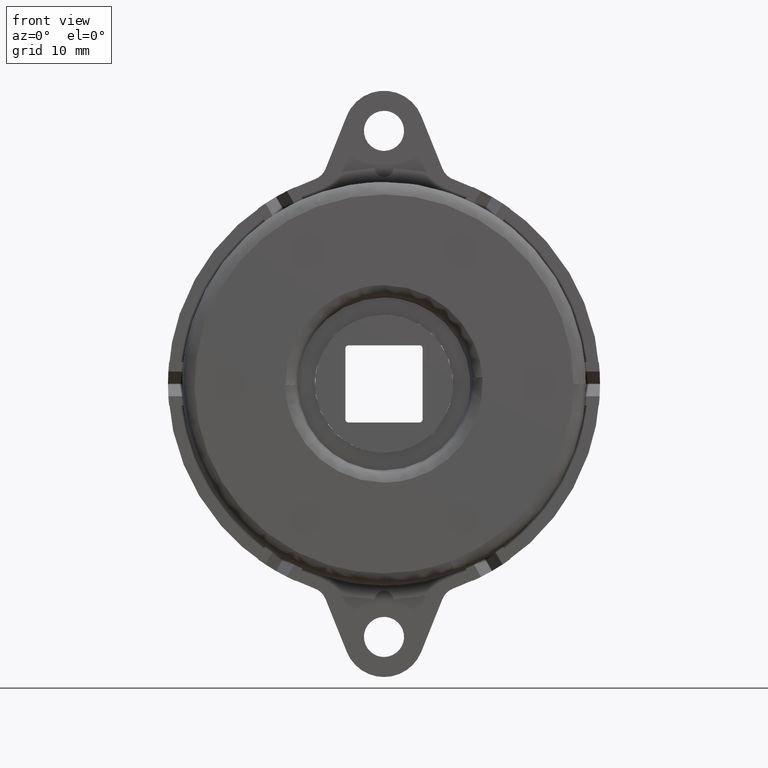
[diagram: clean part render]
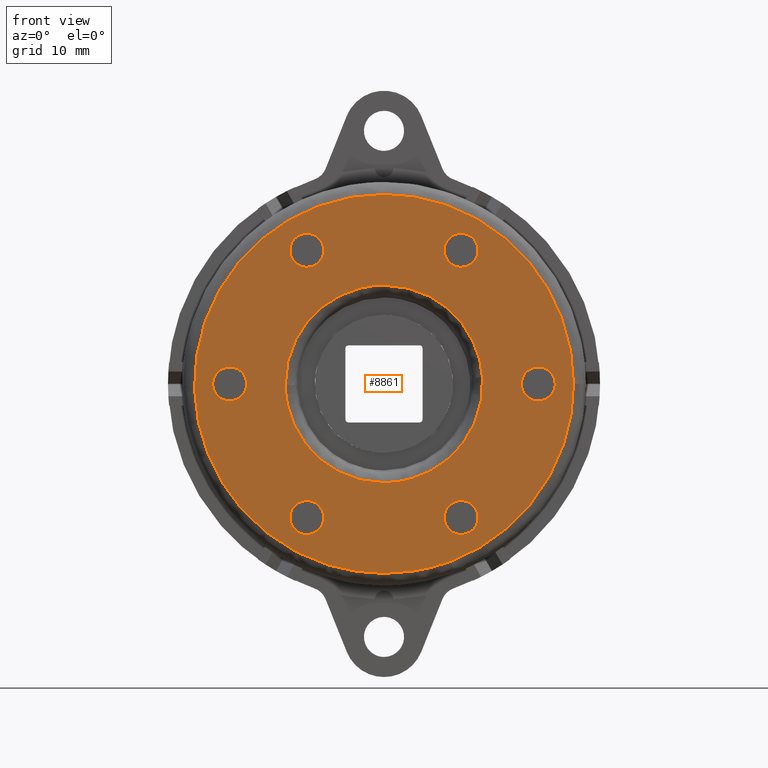
[diagram: same view with one face highlighted and labeled with its STEP entity id]
A machine part, front view. The second image highlights one B-rep face of the part: STEP entity #8861.
In plain terms, the highlighted face is a freeform B-spline surface patch.
Its self-contained STEP definition (entity closure, byte-faithful):
#866=CARTESIAN_POINT('',(-15.230746197486200,-11.300000000000001,21.975224145422871));
#867=VERTEX_POINT('',#866);
#873=CARTESIAN_POINT('',(-12.499969999999999,-11.300000000000001,18.900630000000000));
#874=VERTEX_POINT('',#873);
#875=CARTESIAN_POINT('',(-15.230746197486203,-11.299999999999995,21.975224145422874));
#876=CARTESIAN_POINT('',(-15.249970000000001,-11.300000000000001,21.813496329160774));
#877=CARTESIAN_POINT('',(-15.249969999999999,-11.300000000000001,21.650630000000000));
#878=CARTESIAN_POINT('',(-15.249969999999994,-11.299999999999999,18.900630000000003));
#879=CARTESIAN_POINT('',(-12.499969999999999,-11.300000000000001,18.900630000000000));
#887=(BOUNDED_CURVE()B_SPLINE_CURVE(2,(#875,#876,#877,#878,#879),.UNSPECIFIED.,.F.,.U.)B_SPLINE_CURVE_WITH_KNOTS((3,2,3),(0.229562473501188,0.250000000000000,0.500000000000000),.UNSPECIFIED.)CURVE()GEOMETRIC_REPRESENTATION_ITEM()RATIONAL_B_SPLINE_CURVE((0.956026754159552,0.976055948316711,1.0,0.707106781186548,1.0))REPRESENTATION_ITEM(''));
#888=EDGE_CURVE('',#867,#874,#887,.T.);
#890=CARTESIAN_POINT('',(-9.755099304361327,-11.300000000000001,21.482746515928248));
#891=VERTEX_POINT('',#890);
#892=CARTESIAN_POINT('',(-12.499969999999999,-11.300000000000001,18.900630000000000));
#893=CARTESIAN_POINT('',(-9.913028316671973,-11.300000000000001,18.900630000000003));
#894=CARTESIAN_POINT('',(-9.755099304361327,-11.300000000000006,21.482746515928252));
#902=(BOUNDED_CURVE()B_SPLINE_CURVE(2,(#892,#893,#894),.UNSPECIFIED.,.F.,.U.)B_SPLINE_CURVE_WITH_KNOTS((3,3),(0.500000000000000,0.739332962197853),.UNSPECIFIED.)CURVE()GEOMETRIC_REPRESENTATION_ITEM()RATIONAL_B_SPLINE_CURVE((1.0,0.719603993334849,0.976072041578655))REPRESENTATION_ITEM(''));
#903=EDGE_CURVE('',#874,#891,#902,.T.);
#977=CARTESIAN_POINT('',(-12.499969999999999,-11.300000000000001,24.400630000000000));
#978=VERTEX_POINT('',#977);
#979=CARTESIAN_POINT('',(-9.755099304361327,-11.299999999999997,21.482746515928252));
#980=CARTESIAN_POINT('',(-9.749970000000001,-11.299999999999997,21.566609900577003));
#981=CARTESIAN_POINT('',(-9.749969999999999,-11.300000000000001,21.650630000000000));
#982=CARTESIAN_POINT('',(-9.749969999999999,-11.299999999999999,24.400630000000000));
#983=CARTESIAN_POINT('',(-12.499969999999999,-11.300000000000001,24.400630000000000));
#991=(BOUNDED_CURVE()B_SPLINE_CURVE(2,(#979,#980,#981,#982,#983),.UNSPECIFIED.,.F.,.U.)B_SPLINE_CURVE_WITH_KNOTS((3,2,3),(0.739332962197853,0.750000000000000,1.0),.UNSPECIFIED.)CURVE()GEOMETRIC_REPRESENTATION_ITEM()RATIONAL_B_SPLINE_CURVE((0.976072041578654,0.987502787851698,1.0,0.707106781186548,1.0))REPRESENTATION_ITEM(''));
#992=EDGE_CURVE('',#891,#978,#991,.T.);
#994=CARTESIAN_POINT('',(-12.499969999999999,-11.300000000000001,24.400630000000000));
#995=CARTESIAN_POINT('',(-14.942449946155863,-11.300000000000001,24.400630000000003));
#996=CARTESIAN_POINT('',(-15.230746197486200,-11.300000000000004,21.975224145422878));
#1004=(BOUNDED_CURVE()B_SPLINE_CURVE(2,(#994,#995,#996),.UNSPECIFIED.,.F.,.U.)B_SPLINE_CURVE_WITH_KNOTS((3,3),(0.0,0.229562473501189),.UNSPECIFIED.)CURVE()GEOMETRIC_REPRESENTATION_ITEM()RATIONAL_B_SPLINE_CURVE((1.0,0.731050832869836,0.956026754159552))REPRESENTATION_ITEM(''));
#1005=EDGE_CURVE('',#978,#867,#1004,.T.);
#1052=CARTESIAN_POINT('',(9.769223802513800,-11.300000000000001,21.975224145422871));
#1053=VERTEX_POINT('',#1052);
#1059=CARTESIAN_POINT('',(12.500000000000000,-11.300000000000001,18.900630000000000));
#1060=VERTEX_POINT('',#1059);
#1061=CARTESIAN_POINT('',(9.769223802513800,-11.299999999999995,21.975224145422874));
#1062=CARTESIAN_POINT('',(9.750000000000002,-11.300000000000001,21.813496329160774));
#1063=CARTESIAN_POINT('',(9.750000000000002,-11.300000000000001,21.650630000000000));
#1064=CARTESIAN_POINT('',(9.750000000000002,-11.299999999999999,18.900630000000003));
#1065=CARTESIAN_POINT('',(12.500000000000000,-11.300000000000001,18.900630000000000));
#1073=(BOUNDED_CURVE()B_SPLINE_CURVE(2,(#1061,#1062,#1063,#1064,#1065),.UNSPECIFIED.,.F.,.U.)B_SPLINE_CURVE_WITH_KNOTS((3,2,3),(0.229562473501188,0.250000000000000,0.500000000000000),.UNSPECIFIED.)CURVE()GEOMETRIC_REPRESENTATION_ITEM()RATIONAL_B_SPLINE_CURVE((0.956026754159552,0.976055948316711,1.0,0.707106781186548,1.0))REPRESENTATION_ITEM(''));
#1074=EDGE_CURVE('',#1053,#1060,#1073,.T.);
#1076=CARTESIAN_POINT('',(15.244870695638671,-11.300000000000001,21.482746515928248));
#1077=VERTEX_POINT('',#1076);
#1078=CARTESIAN_POINT('',(12.500000000000000,-11.300000000000001,18.900630000000000));
#1079=CARTESIAN_POINT('',(15.086941683328019,-11.300000000000001,18.900630000000003));
#1080=CARTESIAN_POINT('',(15.244870695638671,-11.300000000000006,21.482746515928252));
#1088=(BOUNDED_CURVE()B_SPLINE_CURVE(2,(#1078,#1079,#1080),.UNSPECIFIED.,.F.,.U.)B_SPLINE_CURVE_WITH_KNOTS((3,3),(0.500000000000000,0.739332962197853),.UNSPECIFIED.)CURVE()GEOMETRIC_REPRESENTATION_ITEM()RATIONAL_B_SPLINE_CURVE((1.0,0.719603993334849,0.976072041578655))REPRESENTATION_ITEM(''));
#1089=EDGE_CURVE('',#1060,#1077,#1088,.T.);
#1163=CARTESIAN_POINT('',(12.500000000000000,-11.300000000000001,24.400630000000000));
#1164=VERTEX_POINT('',#1163);
#1165=CARTESIAN_POINT('',(15.244870695638676,-11.299999999999997,21.482746515928252));
#1166=CARTESIAN_POINT('',(15.250000000000004,-11.299999999999997,21.566609900577003));
#1167=CARTESIAN_POINT('',(15.250000000000000,-11.300000000000001,21.650630000000000));
#1168=CARTESIAN_POINT('',(15.249999999999998,-11.299999999999999,24.400630000000000));
#1169=CARTESIAN_POINT('',(12.500000000000000,-11.300000000000001,24.400630000000000));
#1177=(BOUNDED_CURVE()B_SPLINE_CURVE(2,(#1165,#1166,#1167,#1168,#1169),.UNSPECIFIED.,.F.,.U.)B_SPLINE_CURVE_WITH_KNOTS((3,2,3),(0.739332962197853,0.750000000000000,1.0),.UNSPECIFIED.)CURVE()GEOMETRIC_REPRESENTATION_ITEM()RATIONAL_B_SPLINE_CURVE((0.976072041578654,0.987502787851698,1.0,0.707106781186548,1.0))REPRESENTATION_ITEM(''));
#1178=EDGE_CURVE('',#1077,#1164,#1177,.T.);
#1180=CARTESIAN_POINT('',(12.500000000000000,-11.300000000000001,24.400630000000000));
#1181=CARTESIAN_POINT('',(10.057520053844129,-11.300000000000001,24.400630000000003));
#1182=CARTESIAN_POINT('',(9.769223802513800,-11.300000000000004,21.975224145422878));
#1190=(BOUNDED_CURVE()B_SPLINE_CURVE(2,(#1180,#1181,#1182),.UNSPECIFIED.,.F.,.U.)B_SPLINE_CURVE_WITH_KNOTS((3,3),(0.0,0.229562473501189),.UNSPECIFIED.)CURVE()GEOMETRIC_REPRESENTATION_ITEM()RATIONAL_B_SPLINE_CURVE((1.0,0.731050832869836,0.956026754159552))REPRESENTATION_ITEM(''));
#1191=EDGE_CURVE('',#1164,#1053,#1190,.T.);
#1238=CARTESIAN_POINT('',(22.269223802513800,-11.300000000000001,0.324594145422875));
#1239=VERTEX_POINT('',#1238);
#1245=CARTESIAN_POINT('',(25.0,-11.300000000000001,-2.750000000000000));
#1246=VERTEX_POINT('',#1245);
#1247=CARTESIAN_POINT('',(22.269223802513800,-11.300000000000006,0.324594145422875));
#1248=CARTESIAN_POINT('',(22.250000000000000,-11.300000000000001,0.162866329160777));
#1249=CARTESIAN_POINT('',(22.250000000000000,-11.300000000000001,0.0));
#1250=CARTESIAN_POINT('',(22.250000000000011,-11.299999999999999,-2.750000000000000));
#1251=CARTESIAN_POINT('',(25.0,-11.300000000000001,-2.750000000000000));
#1259=(BOUNDED_CURVE()B_SPLINE_CURVE(2,(#1247,#1248,#1249,#1250,#1251),.UNSPECIFIED.,.F.,.U.)B_SPLINE_CURVE_WITH_KNOTS((3,2,3),(0.229562473501188,0.250000000000000,0.500000000000000),.UNSPECIFIED.)CURVE()GEOMETRIC_REPRESENTATION_ITEM()RATIONAL_B_SPLINE_CURVE((0.956026754159552,0.976055948316711,1.0,0.707106781186548,1.0))REPRESENTATION_ITEM(''));
#1260=EDGE_CURVE('',#1239,#1246,#1259,.T.);
#1262=CARTESIAN_POINT('',(27.744870695638671,-11.300000000000001,-0.167883484071749));
#1263=VERTEX_POINT('',#1262);
#1264=CARTESIAN_POINT('',(25.0,-11.300000000000001,-2.750000000000000));
#1265=CARTESIAN_POINT('',(27.586941683328021,-11.300000000000001,-2.750000000000000));
#1266=CARTESIAN_POINT('',(27.744870695638678,-11.300000000000006,-0.167883484071749));
#1274=(BOUNDED_CURVE()B_SPLINE_CURVE(2,(#1264,#1265,#1266),.UNSPECIFIED.,.F.,.U.)B_SPLINE_CURVE_WITH_KNOTS((3,3),(0.500000000000000,0.739332962197853),.UNSPECIFIED.)CURVE()GEOMETRIC_REPRESENTATION_ITEM()RATIONAL_B_SPLINE_CURVE((1.0,0.719603993334849,0.976072041578655))REPRESENTATION_ITEM(''));
#1275=EDGE_CURVE('',#1246,#1263,#1274,.T.);
#1349=CARTESIAN_POINT('',(25.0,-11.300000000000001,2.750000000000000));
#1350=VERTEX_POINT('',#1349);
#1351=CARTESIAN_POINT('',(27.744870695638674,-11.300000000000006,-0.167883484071749));
#1352=CARTESIAN_POINT('',(27.750000000000000,-11.299999999999997,-0.084020099422996));
#1353=CARTESIAN_POINT('',(27.750000000000000,-11.300000000000001,0.0));
#1354=CARTESIAN_POINT('',(27.749999999999989,-11.299999999999999,2.750000000000000));
#1355=CARTESIAN_POINT('',(25.0,-11.300000000000001,2.750000000000000));
#1363=(BOUNDED_CURVE()B_SPLINE_CURVE(2,(#1351,#1352,#1353,#1354,#1355),.UNSPECIFIED.,.F.,.U.)B_SPLINE_CURVE_WITH_KNOTS((3,2,3),(0.739332962197853,0.750000000000000,1.0),.UNSPECIFIED.)CURVE()GEOMETRIC_REPRESENTATION_ITEM()RATIONAL_B_SPLINE_CURVE((0.976072041578654,0.987502787851698,1.0,0.707106781186548,1.0))REPRESENTATION_ITEM(''));
#1364=EDGE_CURVE('',#1263,#1350,#1363,.T.);
#1366=CARTESIAN_POINT('',(25.0,-11.300000000000001,2.750000000000000));
#1367=CARTESIAN_POINT('',(22.557520053844126,-11.300000000000001,2.750000000000000));
#1368=CARTESIAN_POINT('',(22.269223802513807,-11.300000000000004,0.324594145422875));
#1376=(BOUNDED_CURVE()B_SPLINE_CURVE(2,(#1366,#1367,#1368),.UNSPECIFIED.,.F.,.U.)B_SPLINE_CURVE_WITH_KNOTS((3,3),(0.0,0.229562473501189),.UNSPECIFIED.)CURVE()GEOMETRIC_REPRESENTATION_ITEM()RATIONAL_B_SPLINE_CURVE((1.0,0.731050832869836,0.956026754159552))REPRESENTATION_ITEM(''));
#1377=EDGE_CURVE('',#1350,#1239,#1376,.T.);
#1424=CARTESIAN_POINT('',(9.769223802513801,-11.300000000000001,-21.326035854577121));
#1425=VERTEX_POINT('',#1424);
#1431=CARTESIAN_POINT('',(12.500000000000000,-11.300000000000001,-24.400630000000000));
#1432=VERTEX_POINT('',#1431);
#1433=CARTESIAN_POINT('',(9.769223802513801,-11.300000000000001,-21.326035854577125));
#1434=CARTESIAN_POINT('',(9.750000000000004,-11.300000000000006,-21.487763670839222));
#1435=CARTESIAN_POINT('',(9.750000000000002,-11.300000000000001,-21.650630000000000));
#1436=CARTESIAN_POINT('',(9.750000000000002,-11.299999999999999,-24.400630000000000));
#1437=CARTESIAN_POINT('',(12.500000000000000,-11.300000000000001,-24.400630000000000));
#1445=(BOUNDED_CURVE()B_SPLINE_CURVE(2,(#1433,#1434,#1435,#1436,#1437),.UNSPECIFIED.,.F.,.U.)B_SPLINE_CURVE_WITH_KNOTS((3,2,3),(0.229562473501188,0.250000000000000,0.500000000000000),.UNSPECIFIED.)CURVE()GEOMETRIC_REPRESENTATION_ITEM()RATIONAL_B_SPLINE_CURVE((0.956026754159551,0.976055948316711,1.0,0.707106781186548,1.0))REPRESENTATION_ITEM(''));
#1446=EDGE_CURVE('',#1425,#1432,#1445,.T.);
#1448=CARTESIAN_POINT('',(15.244870695638671,-11.300000000000001,-21.818513484071751));
#1449=VERTEX_POINT('',#1448);
#1450=CARTESIAN_POINT('',(12.500000000000000,-11.300000000000001,-24.400630000000000));
#1451=CARTESIAN_POINT('',(15.086941683328019,-11.300000000000001,-24.400630000000003));
#1452=CARTESIAN_POINT('',(15.244870695638671,-11.299999999999995,-21.818513484071751));
#1460=(BOUNDED_CURVE()B_SPLINE_CURVE(2,(#1450,#1451,#1452),.UNSPECIFIED.,.F.,.U.)B_SPLINE_CURVE_WITH_KNOTS((3,3),(0.500000000000000,0.739332962197853),.UNSPECIFIED.)CURVE()GEOMETRIC_REPRESENTATION_ITEM()RATIONAL_B_SPLINE_CURVE((1.0,0.719603993334849,0.976072041578655))REPRESENTATION_ITEM(''));
#1461=EDGE_CURVE('',#1432,#1449,#1460,.T.);
#1535=CARTESIAN_POINT('',(12.500000000000000,-11.300000000000001,-18.900630000000000));
#1536=VERTEX_POINT('',#1535);
#1537=CARTESIAN_POINT('',(15.244870695638669,-11.300000000000001,-21.818513484071747));
#1538=CARTESIAN_POINT('',(15.249999999999996,-11.300000000000001,-21.734650099422996));
#1539=CARTESIAN_POINT('',(15.250000000000000,-11.300000000000001,-21.650630000000000));
#1540=CARTESIAN_POINT('',(15.249999999999998,-11.299999999999999,-18.900630000000003));
#1541=CARTESIAN_POINT('',(12.500000000000000,-11.300000000000001,-18.900630000000000));
#1549=(BOUNDED_CURVE()B_SPLINE_CURVE(2,(#1537,#1538,#1539,#1540,#1541),.UNSPECIFIED.,.F.,.U.)B_SPLINE_CURVE_WITH_KNOTS((3,2,3),(0.739332962197853,0.750000000000000,1.0),.UNSPECIFIED.)CURVE()GEOMETRIC_REPRESENTATION_ITEM()RATIONAL_B_SPLINE_CURVE((0.976072041578654,0.987502787851697,1.0,0.707106781186548,1.0))REPRESENTATION_ITEM(''));
#1550=EDGE_CURVE('',#1449,#1536,#1549,.T.);
#1552=CARTESIAN_POINT('',(12.500000000000000,-11.300000000000001,-18.900630000000000));
#1553=CARTESIAN_POINT('',(10.057520053844135,-11.300000000000001,-18.900630000000003));
#1554=CARTESIAN_POINT('',(9.769223802513801,-11.300000000000002,-21.326035854577125));
#1562=(BOUNDED_CURVE()B_SPLINE_CURVE(2,(#1552,#1553,#1554),.UNSPECIFIED.,.F.,.U.)B_SPLINE_CURVE_WITH_KNOTS((3,3),(0.0,0.229562473501188),.UNSPECIFIED.)CURVE()GEOMETRIC_REPRESENTATION_ITEM()RATIONAL_B_SPLINE_CURVE((1.0,0.731050832869837,0.956026754159551))REPRESENTATION_ITEM(''));
#1563=EDGE_CURVE('',#1536,#1425,#1562,.T.);
#1610=CARTESIAN_POINT('',(-15.230776197486200,-11.300000000000001,-21.326035854577121));
#1611=VERTEX_POINT('',#1610);
#1617=CARTESIAN_POINT('',(-12.500000000000000,-11.300000000000001,-24.400630000000000));
#1618=VERTEX_POINT('',#1617);
#1619=CARTESIAN_POINT('',(-15.230776197486193,-11.300000000000001,-21.326035854577125));
#1620=CARTESIAN_POINT('',(-15.249999999999996,-11.300000000000006,-21.487763670839222));
#1621=CARTESIAN_POINT('',(-15.250000000000000,-11.300000000000001,-21.650630000000000));
#1622=CARTESIAN_POINT('',(-15.249999999999998,-11.299999999999999,-24.400630000000000));
#1623=CARTESIAN_POINT('',(-12.500000000000000,-11.300000000000001,-24.400630000000000));
#1631=(BOUNDED_CURVE()B_SPLINE_CURVE(2,(#1619,#1620,#1621,#1622,#1623),.UNSPECIFIED.,.F.,.U.)B_SPLINE_CURVE_WITH_KNOTS((3,2,3),(0.229562473501188,0.250000000000000,0.500000000000000),.UNSPECIFIED.)CURVE()GEOMETRIC_REPRESENTATION_ITEM()RATIONAL_B_SPLINE_CURVE((0.956026754159551,0.976055948316711,1.0,0.707106781186548,1.0))REPRESENTATION_ITEM(''));
#1632=EDGE_CURVE('',#1611,#1618,#1631,.T.);
#1634=CARTESIAN_POINT('',(-9.755129304361329,-11.300000000000001,-21.818513484071751));
#1635=VERTEX_POINT('',#1634);
#1636=CARTESIAN_POINT('',(-12.500000000000000,-11.300000000000001,-24.400630000000000));
#1637=CARTESIAN_POINT('',(-9.913058316671975,-11.300000000000001,-24.400630000000003));
#1638=CARTESIAN_POINT('',(-9.755129304361329,-11.299999999999995,-21.818513484071751));
#1646=(BOUNDED_CURVE()B_SPLINE_CURVE(2,(#1636,#1637,#1638),.UNSPECIFIED.,.F.,.U.)B_SPLINE_CURVE_WITH_KNOTS((3,3),(0.500000000000000,0.739332962197853),.UNSPECIFIED.)CURVE()GEOMETRIC_REPRESENTATION_ITEM()RATIONAL_B_SPLINE_CURVE((1.0,0.719603993334849,0.976072041578655))REPRESENTATION_ITEM(''));
#1647=EDGE_CURVE('',#1618,#1635,#1646,.T.);
#1721=CARTESIAN_POINT('',(-12.500000000000000,-11.300000000000001,-18.900630000000000));
#1722=VERTEX_POINT('',#1721);
#1723=CARTESIAN_POINT('',(-9.755129304361329,-11.300000000000001,-21.818513484071747));
#1724=CARTESIAN_POINT('',(-9.750000000000002,-11.300000000000001,-21.734650099422996));
#1725=CARTESIAN_POINT('',(-9.750000000000002,-11.300000000000001,-21.650630000000000));
#1726=CARTESIAN_POINT('',(-9.750000000000002,-11.299999999999999,-18.900630000000003));
#1727=CARTESIAN_POINT('',(-12.500000000000000,-11.300000000000001,-18.900630000000000));
#1735=(BOUNDED_CURVE()B_SPLINE_CURVE(2,(#1723,#1724,#1725,#1726,#1727),.UNSPECIFIED.,.F.,.U.)B_SPLINE_CURVE_WITH_KNOTS((3,2,3),(0.739332962197853,0.750000000000000,1.0),.UNSPECIFIED.)CURVE()GEOMETRIC_REPRESENTATION_ITEM()RATIONAL_B_SPLINE_CURVE((0.976072041578654,0.987502787851697,1.0,0.707106781186548,1.0))REPRESENTATION_ITEM(''));
#1736=EDGE_CURVE('',#1635,#1722,#1735,.T.);
#1738=CARTESIAN_POINT('',(-12.500000000000000,-11.300000000000001,-18.900630000000000));
#1739=CARTESIAN_POINT('',(-14.942479946155872,-11.300000000000001,-18.900630000000003));
#1740=CARTESIAN_POINT('',(-15.230776197486195,-11.300000000000002,-21.326035854577125));
#1748=(BOUNDED_CURVE()B_SPLINE_CURVE(2,(#1738,#1739,#1740),.UNSPECIFIED.,.F.,.U.)B_SPLINE_CURVE_WITH_KNOTS((3,3),(0.0,0.229562473501188),.UNSPECIFIED.)CURVE()GEOMETRIC_REPRESENTATION_ITEM()RATIONAL_B_SPLINE_CURVE((1.0,0.731050832869837,0.956026754159551))REPRESENTATION_ITEM(''));
#1749=EDGE_CURVE('',#1722,#1611,#1748,.T.);
#1796=CARTESIAN_POINT('',(-27.730776197486200,-11.300000000000001,0.324594145422875));
#1797=VERTEX_POINT('',#1796);
#1803=CARTESIAN_POINT('',(-25.0,-11.300000000000001,-2.750000000000000));
#1804=VERTEX_POINT('',#1803);
#1805=CARTESIAN_POINT('',(-27.730776197486200,-11.299999999999995,0.324594145422875));
#1806=CARTESIAN_POINT('',(-27.749999999999996,-11.300000000000001,0.162866329160777));
#1807=CARTESIAN_POINT('',(-27.750000000000000,-11.300000000000001,0.0));
#1808=CARTESIAN_POINT('',(-27.749999999999989,-11.299999999999999,-2.750000000000000));
#1809=CARTESIAN_POINT('',(-25.0,-11.300000000000001,-2.750000000000000));
#1817=(BOUNDED_CURVE()B_SPLINE_CURVE(2,(#1805,#1806,#1807,#1808,#1809),.UNSPECIFIED.,.F.,.U.)B_SPLINE_CURVE_WITH_KNOTS((3,2,3),(0.229562473501188,0.250000000000000,0.500000000000000),.UNSPECIFIED.)CURVE()GEOMETRIC_REPRESENTATION_ITEM()RATIONAL_B_SPLINE_CURVE((0.956026754159552,0.976055948316711,1.0,0.707106781186548,1.0))REPRESENTATION_ITEM(''));
#1818=EDGE_CURVE('',#1797,#1804,#1817,.T.);
#1820=CARTESIAN_POINT('',(-22.255129304361329,-11.300000000000001,-0.167883484071748));
#1821=VERTEX_POINT('',#1820);
#1822=CARTESIAN_POINT('',(-25.0,-11.300000000000001,-2.750000000000000));
#1823=CARTESIAN_POINT('',(-22.413058316671972,-11.300000000000001,-2.750000000000000));
#1824=CARTESIAN_POINT('',(-22.255129304361329,-11.300000000000006,-0.167883484071748));
#1832=(BOUNDED_CURVE()B_SPLINE_CURVE(2,(#1822,#1823,#1824),.UNSPECIFIED.,.F.,.U.)B_SPLINE_CURVE_WITH_KNOTS((3,3),(0.500000000000000,0.739332962197853),.UNSPECIFIED.)CURVE()GEOMETRIC_REPRESENTATION_ITEM()RATIONAL_B_SPLINE_CURVE((1.0,0.719603993334849,0.976072041578655))REPRESENTATION_ITEM(''));
#1833=EDGE_CURVE('',#1804,#1821,#1832,.T.);
#1907=CARTESIAN_POINT('',(-25.0,-11.300000000000001,2.750000000000000));
#1908=VERTEX_POINT('',#1907);
#1909=CARTESIAN_POINT('',(-22.255129304361333,-11.300000000000004,-0.167883484071748));
#1910=CARTESIAN_POINT('',(-22.250000000000004,-11.299999999999995,-0.084020099422995));
#1911=CARTESIAN_POINT('',(-22.250000000000000,-11.300000000000001,0.0));
#1912=CARTESIAN_POINT('',(-22.250000000000011,-11.299999999999999,2.750000000000000));
#1913=CARTESIAN_POINT('',(-25.0,-11.300000000000001,2.750000000000000));
#1921=(BOUNDED_CURVE()B_SPLINE_CURVE(2,(#1909,#1910,#1911,#1912,#1913),.UNSPECIFIED.,.F.,.U.)B_SPLINE_CURVE_WITH_KNOTS((3,2,3),(0.739332962197853,0.750000000000000,1.0),.UNSPECIFIED.)CURVE()GEOMETRIC_REPRESENTATION_ITEM()RATIONAL_B_SPLINE_CURVE((0.976072041578655,0.987502787851698,1.0,0.707106781186548,1.0))REPRESENTATION_ITEM(''));
#1922=EDGE_CURVE('',#1821,#1908,#1921,.T.);
#1924=CARTESIAN_POINT('',(-25.0,-11.300000000000001,2.750000000000000));
#1925=CARTESIAN_POINT('',(-27.442479946155867,-11.300000000000001,2.750000000000000));
#1926=CARTESIAN_POINT('',(-27.730776197486204,-11.300000000000004,0.324594145422875));
#1934=(BOUNDED_CURVE()B_SPLINE_CURVE(2,(#1924,#1925,#1926),.UNSPECIFIED.,.F.,.U.)B_SPLINE_CURVE_WITH_KNOTS((3,3),(0.0,0.229562473501189),.UNSPECIFIED.)CURVE()GEOMETRIC_REPRESENTATION_ITEM()RATIONAL_B_SPLINE_CURVE((1.0,0.731050832869836,0.956026754159552))REPRESENTATION_ITEM(''));
#1935=EDGE_CURVE('',#1908,#1797,#1934,.T.);
#4358=CARTESIAN_POINT('',(-15.998736705224960,-11.300000000000001,-0.201056638404336));
#4359=VERTEX_POINT('',#4358);
#4373=CARTESIAN_POINT('',(0.0,-11.300000000000001,-16.0));
#4374=VERTEX_POINT('',#4373);
#4375=CARTESIAN_POINT('',(0.0,-11.300000000000001,-16.0));
#4376=CARTESIAN_POINT('',(-15.800190877931765,-11.299999999999999,-16.000000000000007));
#4377=CARTESIAN_POINT('',(-15.998736705224955,-11.299999999999995,-0.201056638404336));
#4385=(BOUNDED_CURVE()B_SPLINE_CURVE(2,(#4375,#4376,#4377),.UNSPECIFIED.,.F.,.U.)B_SPLINE_CURVE_WITH_KNOTS((3,3),(0.500000000000000,0.747784295915214),.UNSPECIFIED.)CURVE()GEOMETRIC_REPRESENTATION_ITEM()RATIONAL_B_SPLINE_CURVE((1.0,0.709702639991872,0.994854295629020))REPRESENTATION_ITEM(''));
#4386=EDGE_CURVE('',#4374,#4359,#4385,.T.);
#4388=CARTESIAN_POINT('',(15.961050781235720,-11.300000000000001,1.115732025238826));
#4389=VERTEX_POINT('',#4388);
#4390=CARTESIAN_POINT('',(15.961050781235716,-11.299999999999999,1.115732025238826));
#4391=CARTESIAN_POINT('',(16.000000000000007,-11.299999999999995,0.558545854041845));
#4392=CARTESIAN_POINT('',(16.0,-11.300000000000001,-9.985231E-016));
#4393=CARTESIAN_POINT('',(15.999999999999998,-11.299999999999999,-15.999999999999998));
#4394=CARTESIAN_POINT('',(0.0,-11.300000000000001,-16.0));
#4402=(BOUNDED_CURVE()B_SPLINE_CURVE(2,(#4390,#4391,#4392,#4393,#4394),.UNSPECIFIED.,.F.,.U.)B_SPLINE_CURVE_WITH_KNOTS((3,2,3),(0.237833686534137,0.250000000000000,0.500000000000000),.UNSPECIFIED.)CURVE()GEOMETRIC_REPRESENTATION_ITEM()RATIONAL_B_SPLINE_CURVE((0.972879876384957,0.985746277151560,1.0,0.707106781186548,1.0))REPRESENTATION_ITEM(''));
#4403=EDGE_CURVE('',#4389,#4374,#4402,.T.);
#4460=CARTESIAN_POINT('',(0.0,-11.300000000000001,16.0));
#4461=VERTEX_POINT('',#4460);
#4462=CARTESIAN_POINT('',(0.0,-11.300000000000001,16.0));
#4463=CARTESIAN_POINT('',(14.920589556179154,-11.299999999999999,16.000000000000004));
#4464=CARTESIAN_POINT('',(15.961050781235716,-11.299999999999999,1.115732025238826));
#4472=(BOUNDED_CURVE()B_SPLINE_CURVE(2,(#4462,#4463,#4464),.UNSPECIFIED.,.F.,.U.)B_SPLINE_CURVE_WITH_KNOTS((3,3),(0.0,0.237833686534137),.UNSPECIFIED.)CURVE()GEOMETRIC_REPRESENTATION_ITEM()RATIONAL_B_SPLINE_CURVE((1.0,0.721360504034988,0.972879876384957))REPRESENTATION_ITEM(''));
#4473=EDGE_CURVE('',#4461,#4389,#4472,.T.);
#4475=CARTESIAN_POINT('',(-15.998736705224955,-11.299999999999995,-0.201056638404336));
#4476=CARTESIAN_POINT('',(-16.000000000000004,-11.299999999999995,-0.100532288166506));
#4477=CARTESIAN_POINT('',(-16.0,-11.300000000000001,-9.985231E-016));
#4478=CARTESIAN_POINT('',(-15.999999999999998,-11.299999999999999,15.999999999999998));
#4479=CARTESIAN_POINT('',(0.0,-11.300000000000001,16.0));
#4487=(BOUNDED_CURVE()B_SPLINE_CURVE(2,(#4475,#4476,#4477,#4478,#4479),.UNSPECIFIED.,.F.,.U.)B_SPLINE_CURVE_WITH_KNOTS((3,2,3),(0.747784295915215,0.750000000000000,1.0),.UNSPECIFIED.)CURVE()GEOMETRIC_REPRESENTATION_ITEM()RATIONAL_B_SPLINE_CURVE((0.994854295629023,0.997404141194677,1.0,0.707106781186548,1.0))REPRESENTATION_ITEM(''));
#4488=EDGE_CURVE('',#4359,#4461,#4487,.T.);
#4544=CARTESIAN_POINT('',(0.0,-11.300000000000001,-30.699999999999999));
#4545=VERTEX_POINT('',#4544);
#4546=CARTESIAN_POINT('',(10.846370380472649,-11.300000000000001,-28.720136668097190));
#4547=VERTEX_POINT('',#4546);
#4548=CARTESIAN_POINT('',(0.0,-11.300000000000001,-30.699999999999999));
#4549=CARTESIAN_POINT('',(5.603884294070642,-11.299999999999994,-30.700000000000003));
#4550=CARTESIAN_POINT('',(10.846370380472653,-11.299999999999997,-28.720136668097194));
#4558=(BOUNDED_CURVE()B_SPLINE_CURVE(2,(#4548,#4549,#4550),.UNSPECIFIED.,.F.,.U.)B_SPLINE_CURVE_WITH_KNOTS((3,3),(0.500000000000000,0.560000000002018),.UNSPECIFIED.)CURVE()GEOMETRIC_REPRESENTATION_ITEM()RATIONAL_B_SPLINE_CURVE((1.0,0.929705627482407,0.893152553774393))REPRESENTATION_ITEM(''));
#4559=EDGE_CURVE('',#4545,#4547,#4558,.T.);
#4561=CARTESIAN_POINT('',(0.0,-11.300000000000001,30.699999999999999));
#4562=VERTEX_POINT('',#4561);
#4563=CARTESIAN_POINT('',(0.0,-11.300000000000001,30.699999999999999));
#4564=CARTESIAN_POINT('',(-30.699999999999999,-11.299999999999999,30.699999999999999));
#4565=CARTESIAN_POINT('',(-30.699999999999999,-11.300000000000001,-9.985231E-016));
#4566=CARTESIAN_POINT('',(-30.699999999999999,-11.299999999999999,-30.699999999999999));
#4567=CARTESIAN_POINT('',(0.0,-11.300000000000001,-30.699999999999999));
#4575=(BOUNDED_CURVE()B_SPLINE_CURVE(2,(#4563,#4564,#4565,#4566,#4567),.UNSPECIFIED.,.F.,.U.)B_SPLINE_CURVE_WITH_KNOTS((3,2,3),(0.0,0.250000000000000,0.500000000000000),.UNSPECIFIED.)CURVE()GEOMETRIC_REPRESENTATION_ITEM()RATIONAL_B_SPLINE_CURVE((1.0,0.707106781186548,1.0,0.707106781186548,1.0))REPRESENTATION_ITEM(''));
#4576=EDGE_CURVE('',#4562,#4545,#4575,.T.);
#4578=CARTESIAN_POINT('',(30.700000000572651,-11.300000000000001,0.0));
#4579=VERTEX_POINT('',#4578);
#4580=CARTESIAN_POINT('',(30.700000000572651,-11.300000000000001,0.0));
#4581=CARTESIAN_POINT('',(30.699999999999999,-11.299999999999999,30.699999999999999));
#4582=CARTESIAN_POINT('',(0.0,-11.300000000000001,30.699999999999999));
#4590=(BOUNDED_CURVE()B_SPLINE_CURVE(2,(#4580,#4581,#4582),.UNSPECIFIED.,.F.,.U.)B_SPLINE_CURVE_WITH_KNOTS((3,3),(0.750000000000000,1.0),.UNSPECIFIED.)CURVE()GEOMETRIC_REPRESENTATION_ITEM()RATIONAL_B_SPLINE_CURVE((1.0,0.707106781186548,1.0))REPRESENTATION_ITEM(''));
#4591=EDGE_CURVE('',#4579,#4562,#4590,.T.);
#4644=CARTESIAN_POINT('',(10.846370380472653,-11.300000000000002,-28.720136668097190));
#4645=CARTESIAN_POINT('',(30.700000000000124,-11.299999999999999,-21.222267731220864));
#4646=CARTESIAN_POINT('',(30.700000000572661,-11.299999999999997,0.0));
#4654=(BOUNDED_CURVE()B_SPLINE_CURVE(2,(#4644,#4645,#4646),.UNSPECIFIED.,.F.,.U.)B_SPLINE_CURVE_WITH_KNOTS((3,3),(0.560000000002018,0.750000000000001),.UNSPECIFIED.)CURVE()GEOMETRIC_REPRESENTATION_ITEM()RATIONAL_B_SPLINE_CURVE((0.893152553774394,0.777401153704140,1.000000000000002))REPRESENTATION_ITEM(''));
#4655=EDGE_CURVE('',#4547,#4579,#4654,.T.);
#8808=CARTESIAN_POINT('',(-33.766931033781987,-11.300000000000001,-33.766931033753423));
#8809=CARTESIAN_POINT('',(-33.766931033781987,-11.300000000000001,33.766931582712203));
#8810=CARTESIAN_POINT('',(33.766931583313450,-11.300000000000001,-33.766931033753423));
#8811=CARTESIAN_POINT('',(33.766931583313450,-11.300000000000001,33.766931582712203));
#8812=B_SPLINE_SURFACE_WITH_KNOTS('',1,1,((#8808,#8810),(#8809,#8811)),.UNSPECIFIED.,.F.,.F.,.U.,(2,2),(2,2),(0.0,67.533862616465626),(0.0,67.533862617095437),.UNSPECIFIED.);
#8813=ORIENTED_EDGE('',*,*,#4576,.T.);
#8814=ORIENTED_EDGE('',*,*,#4559,.T.);
#8815=ORIENTED_EDGE('',*,*,#4655,.T.);
#8816=ORIENTED_EDGE('',*,*,#4591,.T.);
#8817=EDGE_LOOP('',(#8813,#8814,#8815,#8816));
#8818=FACE_OUTER_BOUND('',#8817,.T.);
#8819=ORIENTED_EDGE('',*,*,#4386,.T.);
#8820=ORIENTED_EDGE('',*,*,#4488,.T.);
#8821=ORIENTED_EDGE('',*,*,#4473,.T.);
#8822=ORIENTED_EDGE('',*,*,#4403,.T.);
#8823=EDGE_LOOP('',(#8819,#8820,#8821,#8822));
#8824=FACE_BOUND('',#8823,.T.);
#8825=ORIENTED_EDGE('',*,*,#1833,.F.);
#8826=ORIENTED_EDGE('',*,*,#1818,.F.);
#8827=ORIENTED_EDGE('',*,*,#1935,.F.);
#8828=ORIENTED_EDGE('',*,*,#1922,.F.);
#8829=EDGE_LOOP('',(#8825,#8826,#8827,#8828));
#8830=FACE_BOUND('',#8829,.T.);
#8831=ORIENTED_EDGE('',*,*,#1647,.F.);
#8832=ORIENTED_EDGE('',*,*,#1632,.F.);
#8833=ORIENTED_EDGE('',*,*,#1749,.F.);
#8834=ORIENTED_EDGE('',*,*,#1736,.F.);
#8835=EDGE_LOOP('',(#8831,#8832,#8833,#8834));
#8836=FACE_BOUND('',#8835,.T.);
#8837=ORIENTED_EDGE('',*,*,#1461,.F.);
#8838=ORIENTED_EDGE('',*,*,#1446,.F.);
#8839=ORIENTED_EDGE('',*,*,#1563,.F.);
#8840=ORIENTED_EDGE('',*,*,#1550,.F.);
#8841=EDGE_LOOP('',(#8837,#8838,#8839,#8840));
#8842=FACE_BOUND('',#8841,.T.);
#8843=ORIENTED_EDGE('',*,*,#1275,.F.);
#8844=ORIENTED_EDGE('',*,*,#1260,.F.);
#8845=ORIENTED_EDGE('',*,*,#1377,.F.);
#8846=ORIENTED_EDGE('',*,*,#1364,.F.);
#8847=EDGE_LOOP('',(#8843,#8844,#8845,#8846));
#8848=FACE_BOUND('',#8847,.T.);
#8849=ORIENTED_EDGE('',*,*,#1089,.F.);
#8850=ORIENTED_EDGE('',*,*,#1074,.F.);
#8851=ORIENTED_EDGE('',*,*,#1191,.F.);
#8852=ORIENTED_EDGE('',*,*,#1178,.F.);
#8853=EDGE_LOOP('',(#8849,#8850,#8851,#8852));
#8854=FACE_BOUND('',#8853,.T.);
#8855=ORIENTED_EDGE('',*,*,#903,.F.);
#8856=ORIENTED_EDGE('',*,*,#888,.F.);
#8857=ORIENTED_EDGE('',*,*,#1005,.F.);
#8858=ORIENTED_EDGE('',*,*,#992,.F.);
#8859=EDGE_LOOP('',(#8855,#8856,#8857,#8858));
#8860=FACE_BOUND('',#8859,.T.);
#8861=ADVANCED_FACE('',(#8818,#8824,#8830,#8836,#8842,#8848,#8854,#8860),#8812,.F.);